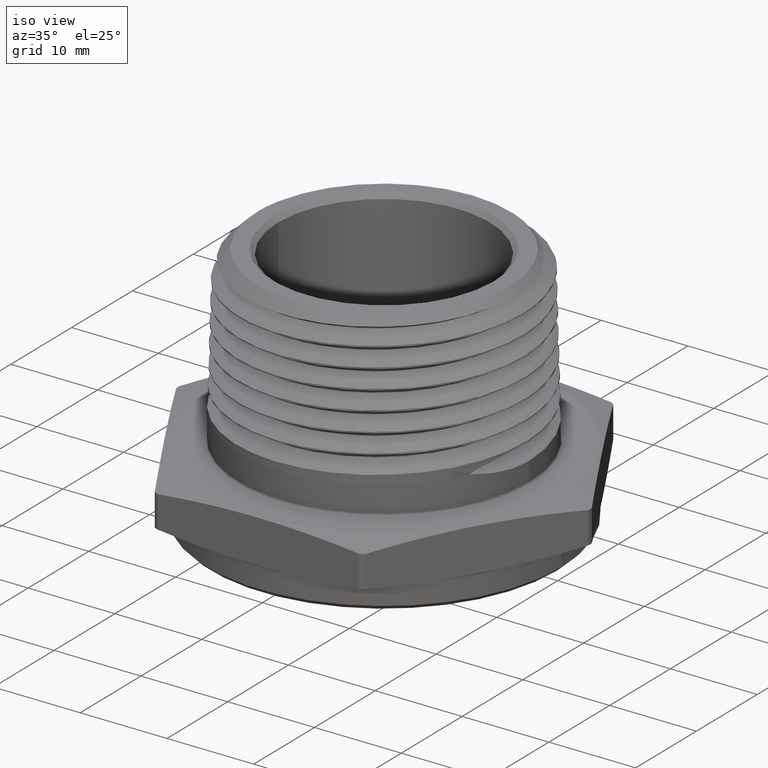
[diagram: clean part render]
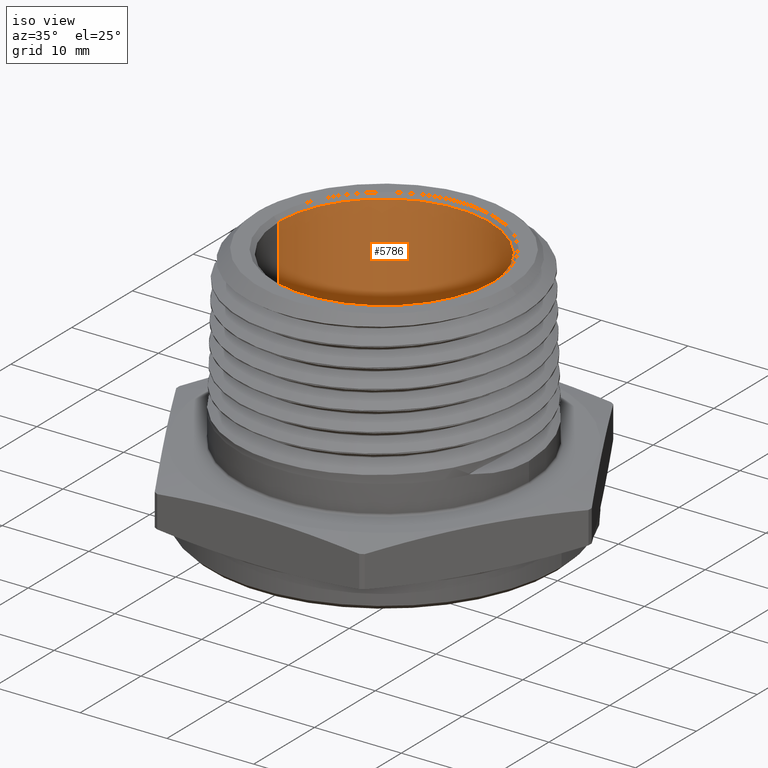
[diagram: same view with one face highlighted and labeled with its STEP entity id]
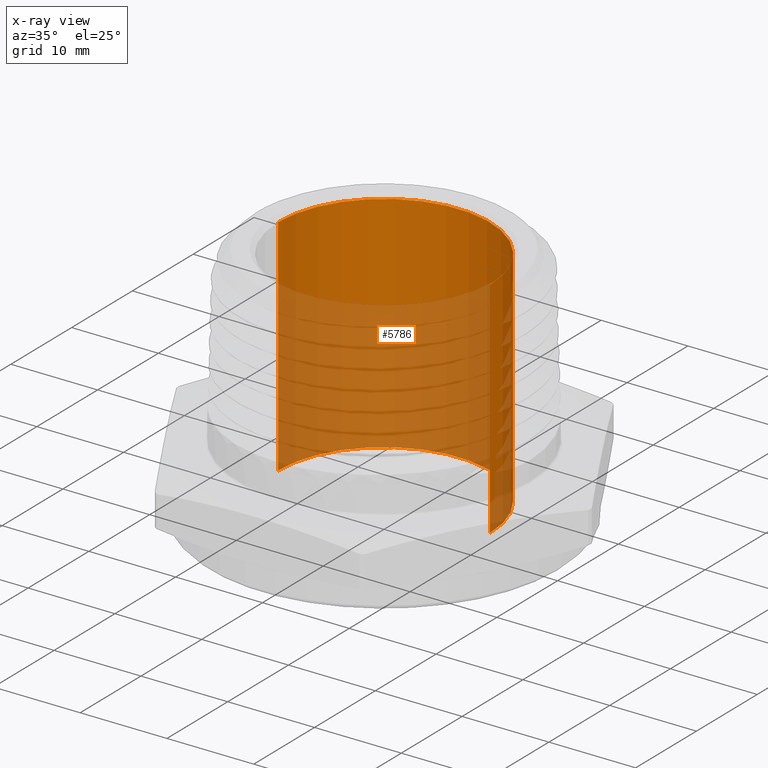
[diagram: x-ray of the same camera — body ghosted, the highlighted face saturated]
A machine part, iso view. The second image highlights one B-rep face of the part: STEP entity #5786.
The next image is the same camera in x-ray: the body ghosted, the highlighted face saturated — about 60% of this face is hidden behind the body in this view.
In plain terms, the highlighted cylindrical surface (partial cylindrical patch) has radius 12.192 mm, axis along (-0, -0, -1).
Its self-contained STEP definition (entity closure, byte-faithful):
#23 = LINE ( 'NONE', #5615, #26 ) ;
#26 = VECTOR ( 'NONE', #5619, 39.37007874015748100 ) ;
#28 = LINE ( 'NONE', #5607, #32 ) ;
#32 = VECTOR ( 'NONE', #5601, 39.37007874015748100 ) ;
#137 = CIRCLE ( 'NONE', #3975, 0.4799999999999998700 ) ;
#141 = CIRCLE ( 'NONE', #3976, 0.4799999999999999800 ) ;
#181 = FACE_OUTER_BOUND ( 'NONE', #263, .T. ) ;
#190 = CYLINDRICAL_SURFACE ( 'NONE', #1524, 0.4799999999999998200 ) ;
#263 = EDGE_LOOP ( 'NONE', ( #1797, #1795, #1793, #1791 ) ) ;
#1524 = AXIS2_PLACEMENT_3D ( 'NONE', #4532, #4528, #4530 ) ;
#1791 = ORIENTED_EDGE ( 'NONE', *, *, #3905, .T. ) ;
#1793 = ORIENTED_EDGE ( 'NONE', *, *, #3779, .T. ) ;
#1795 = ORIENTED_EDGE ( 'NONE', *, *, #3903, .F. ) ;
#1797 = ORIENTED_EDGE ( 'NONE', *, *, #3783, .F. ) ;
#3779 = EDGE_CURVE ( 'NONE', #4777, #4776, #23, .T. ) ;
#3783 = EDGE_CURVE ( 'NONE', #4778, #4859, #28, .T. ) ;
#3903 = EDGE_CURVE ( 'NONE', #4777, #4778, #137, .T. ) ;
#3905 = EDGE_CURVE ( 'NONE', #4776, #4859, #141, .T. ) ;
#3975 = AXIS2_PLACEMENT_3D ( 'NONE', #6583, #6584, #6585 ) ;
#3976 = AXIS2_PLACEMENT_3D ( 'NONE', #6593, #6594, #6595 ) ;
#4358 = CARTESIAN_POINT ( 'NONE',  ( 0.4799999999999999300, 5.878304635907294700E-017, 0.9700000000000000800 ) ) ;
#4367 = CARTESIAN_POINT ( 'NONE',  ( -0.4799999999999999800, 0.0000000000000000000, -0.04800000000000000800 ) ) ;
#4368 = CARTESIAN_POINT ( 'NONE',  ( -0.4799999999999998700, 0.0000000000000000000, 0.9700000000000000800 ) ) ;
#4399 = CARTESIAN_POINT ( 'NONE',  ( 0.4799999999999999800, 5.878304635907294700E-017, -0.04800000000000000800 ) ) ;
#4528 = DIRECTION ( 'NONE',  ( -0.0000000000000000000, -0.0000000000000000000, -1.000000000000000000 ) ) ;
#4530 = DIRECTION ( 'NONE',  ( -1.000000000000000000, 0.0000000000000000000, 0.0000000000000000000 ) ) ;
#4532 = CARTESIAN_POINT ( 'NONE',  ( 2.449293598294655500E-018, 0.0000000000000000000, -0.1200000000000000000 ) ) ;
#4776 = VERTEX_POINT ( 'NONE', #4367 ) ;
#4777 = VERTEX_POINT ( 'NONE', #4368 ) ;
#4778 = VERTEX_POINT ( 'NONE', #4358 ) ;
#4859 = VERTEX_POINT ( 'NONE', #4399 ) ;
#5601 = DIRECTION ( 'NONE',  ( -0.0000000000000000000, -0.0000000000000000000, -1.000000000000000000 ) ) ;
#5607 = CARTESIAN_POINT ( 'NONE',  ( 0.4799999999999998200, 5.878304635907293500E-017, -0.1200000000000000000 ) ) ;
#5615 = CARTESIAN_POINT ( 'NONE',  ( -0.4799999999999998200, 0.0000000000000000000, -0.1200000000000000000 ) ) ;
#5619 = DIRECTION ( 'NONE',  ( -0.0000000000000000000, -0.0000000000000000000, -1.000000000000000000 ) ) ;
#5786 = ADVANCED_FACE ( 'NONE', ( #181 ), #190, .F. ) ;
#6583 = CARTESIAN_POINT ( 'NONE',  ( 2.449293598294655500E-018, 0.0000000000000000000, 0.9700000000000000800 ) ) ;
#6584 = DIRECTION ( 'NONE',  ( -0.0000000000000000000, -0.0000000000000000000, -1.000000000000000000 ) ) ;
#6585 = DIRECTION ( 'NONE',  ( -1.000000000000000000, 0.0000000000000000000, 0.0000000000000000000 ) ) ;
#6593 = CARTESIAN_POINT ( 'NONE',  ( 2.449293598294655500E-018, 0.0000000000000000000, -0.04800000000000000800 ) ) ;
#6594 = DIRECTION ( 'NONE',  ( -0.0000000000000000000, -0.0000000000000000000, -1.000000000000000000 ) ) ;
#6595 = DIRECTION ( 'NONE',  ( -1.000000000000000000, 0.0000000000000000000, 0.0000000000000000000 ) ) ;